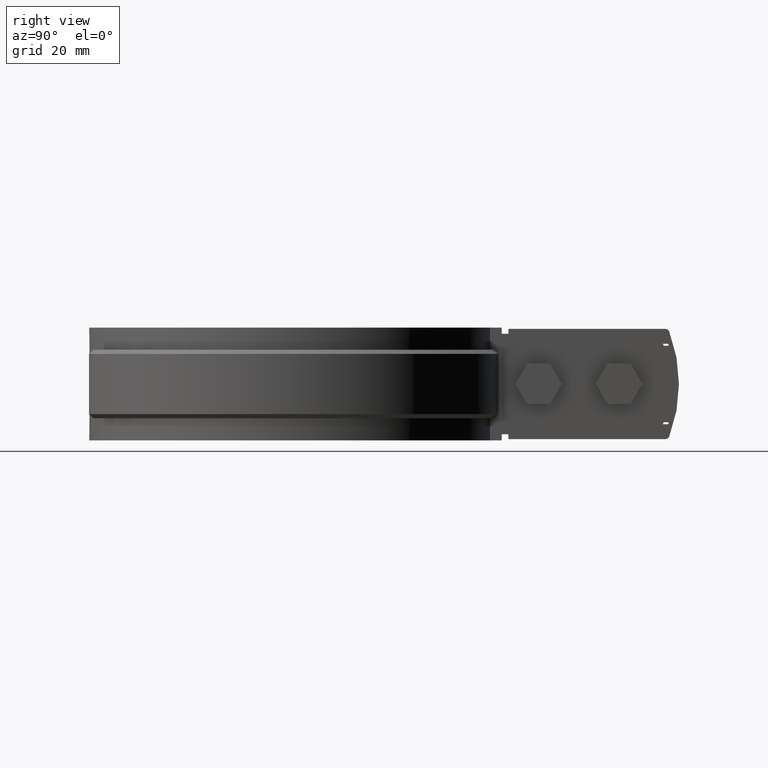
[diagram: clean part render]
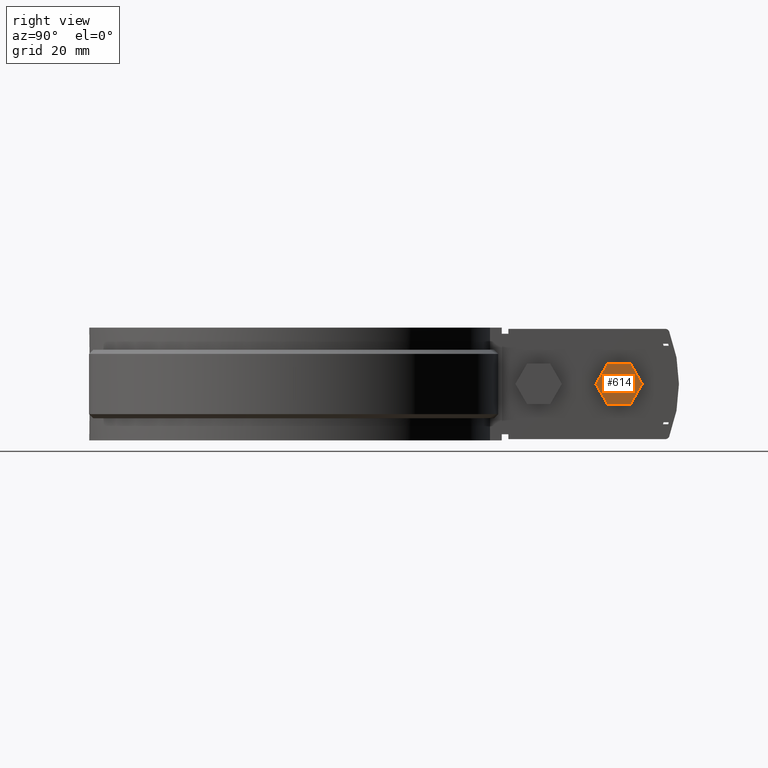
[diagram: same view with one face highlighted and labeled with its STEP entity id]
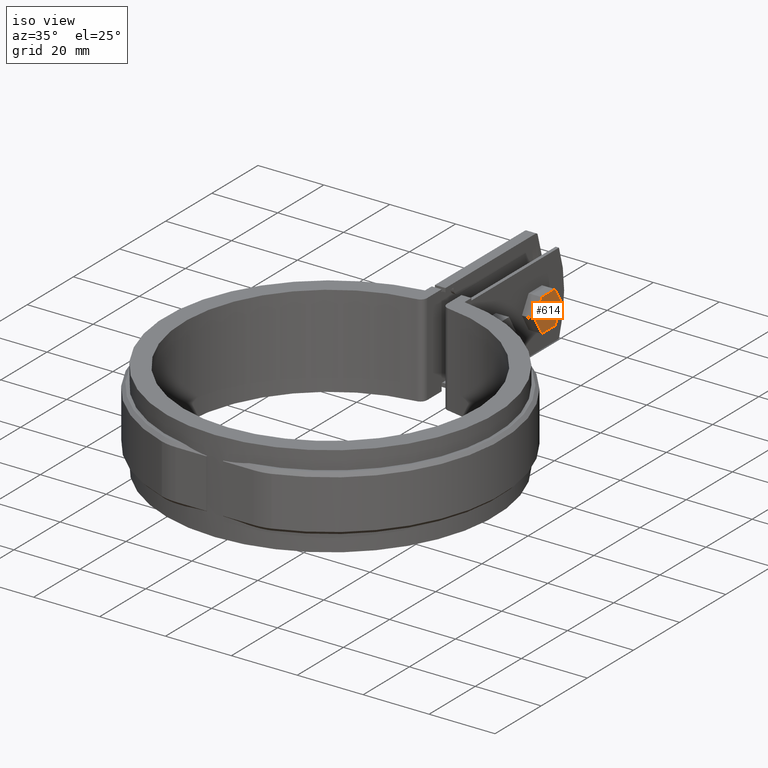
[diagram: same view with one face highlighted and labeled with its STEP entity id]
A machine part, right view. The second image highlights one B-rep face of the part: STEP entity #614.
A second angle (iso view) of the same face is appended — the face is thin or edge-on in the first view.
In plain terms, the highlighted planar face has unit normal (-1, -0, 0).
Its self-contained STEP definition (entity closure, byte-faithful):
#614 = ADVANCED_FACE( '', ( #1161 ), #1162, .F. );
#1161 = FACE_OUTER_BOUND( '', #2532, .T. );
#1162 = PLANE( '', #2533 );
#2532 = EDGE_LOOP( '', ( #5853, #5854, #5855, #5856, #5857, #5858 ) );
#2533 = AXIS2_PLACEMENT_3D( '', #5859, #5860, #5861 );
#5853 = ORIENTED_EDGE( '', *, *, #8035, .T. );
#5854 = ORIENTED_EDGE( '', *, *, #8036, .T. );
#5855 = ORIENTED_EDGE( '', *, *, #8037, .T. );
#5856 = ORIENTED_EDGE( '', *, *, #8038, .T. );
#5857 = ORIENTED_EDGE( '', *, *, #8039, .T. );
#5858 = ORIENTED_EDGE( '', *, *, #8033, .T. );
#5859 = CARTESIAN_POINT( '', ( 9.00000000000001, 73.0358550313836, -5.00000000000000 ) );
#5860 = DIRECTION( '', ( -1.00000000000000, -1.97569336576913E-106, 0.000000000000000 ) );
#5861 = DIRECTION( '', ( -1.97569336576913E-106, 1.00000000000000, 0.000000000000000 ) );
#8033 = EDGE_CURVE( '', #9339, #9337, #9340, .T. );
#8035 = EDGE_CURVE( '', #9337, #9342, #9343, .T. );
#8036 = EDGE_CURVE( '', #9342, #9344, #9345, .T. );
#8037 = EDGE_CURVE( '', #9344, #9346, #9347, .T. );
#8038 = EDGE_CURVE( '', #9346, #9348, #9349, .T. );
#8039 = EDGE_CURVE( '', #9348, #9339, #9350, .T. );
#9337 = VERTEX_POINT( '', #13240 );
#9339 = VERTEX_POINT( '', #13243 );
#9340 = LINE( '', #13244, #13245 );
#9342 = VERTEX_POINT( '', #13248 );
#9343 = LINE( '', #13249, #13250 );
#9344 = VERTEX_POINT( '', #13251 );
#9345 = LINE( '', #13252, #13253 );
#9346 = VERTEX_POINT( '', #13254 );
#9347 = LINE( '', #13255, #13256 );
#9348 = VERTEX_POINT( '', #13257 );
#9349 = LINE( '', #13258, #13259 );
#9350 = LINE( '', #13260, #13261 );
#13240 = CARTESIAN_POINT( '', ( 9.00000000000001, 78.8093577232799, -5.00000000000000 ) );
#13243 = CARTESIAN_POINT( '', ( 9.00000000000001, 75.9226063773317, -1.73472347597681E-015 ) );
#13244 = CARTESIAN_POINT( '', ( 9.00000000000001, 75.9226063773317, -6.74183263930794E-016 ) );
#13245 = VECTOR( '', #15116, 1000.00000000000 );
#13248 = CARTESIAN_POINT( '', ( 9.00000000000001, 84.5828604151761, -5.00000000000000 ) );
#13249 = CARTESIAN_POINT( '', ( 9.00000000000001, 78.8093577232799, -5.00000000000000 ) );
#13250 = VECTOR( '', #15118, 1000.00000000000 );
#13251 = CARTESIAN_POINT( '', ( 9.00000000000001, 87.4696117611243, -1.73472347597681E-015 ) );
#13252 = CARTESIAN_POINT( '', ( 9.00000000000001, 84.5828604151761, -5.00000000000000 ) );
#13253 = VECTOR( '', #15119, 1000.00000000000 );
#13254 = CARTESIAN_POINT( '', ( 9.00000000000001, 84.5828604151761, 5.00000000000000 ) );
#13255 = CARTESIAN_POINT( '', ( 9.00000000000001, 87.4696117611243, -2.08823687999215E-015 ) );
#13256 = VECTOR( '', #15120, 1000.00000000000 );
#13257 = CARTESIAN_POINT( '', ( 9.00000000000001, 78.8093577232799, 5.00000000000000 ) );
#13258 = CARTESIAN_POINT( '', ( 9.00000000000001, 84.5828604151761, 5.00000000000000 ) );
#13259 = VECTOR( '', #15121, 1000.00000000000 );
#13260 = CARTESIAN_POINT( '', ( 9.00000000000001, 78.8093577232799, 5.00000000000000 ) );
#13261 = VECTOR( '', #15122, 1000.00000000000 );
#15116 = DIRECTION( '', ( -9.87846682884561E-107, 0.500000000000000, -0.866025403784439 ) );
#15118 = DIRECTION( '', ( -1.97569336576913E-106, 1.00000000000000, -3.00462919747432E-016 ) );
#15119 = DIRECTION( '', ( -9.87846682884561E-107, 0.500000000000000, 0.866025403784439 ) );
#15120 = DIRECTION( '', ( 9.87846682884561E-107, -0.500000000000000, 0.866025403784439 ) );
#15121 = DIRECTION( '', ( 1.97569336576913E-106, -1.00000000000000, 0.000000000000000 ) );
#15122 = DIRECTION( '', ( 9.87846682884561E-107, -0.500000000000000, -0.866025403784439 ) );